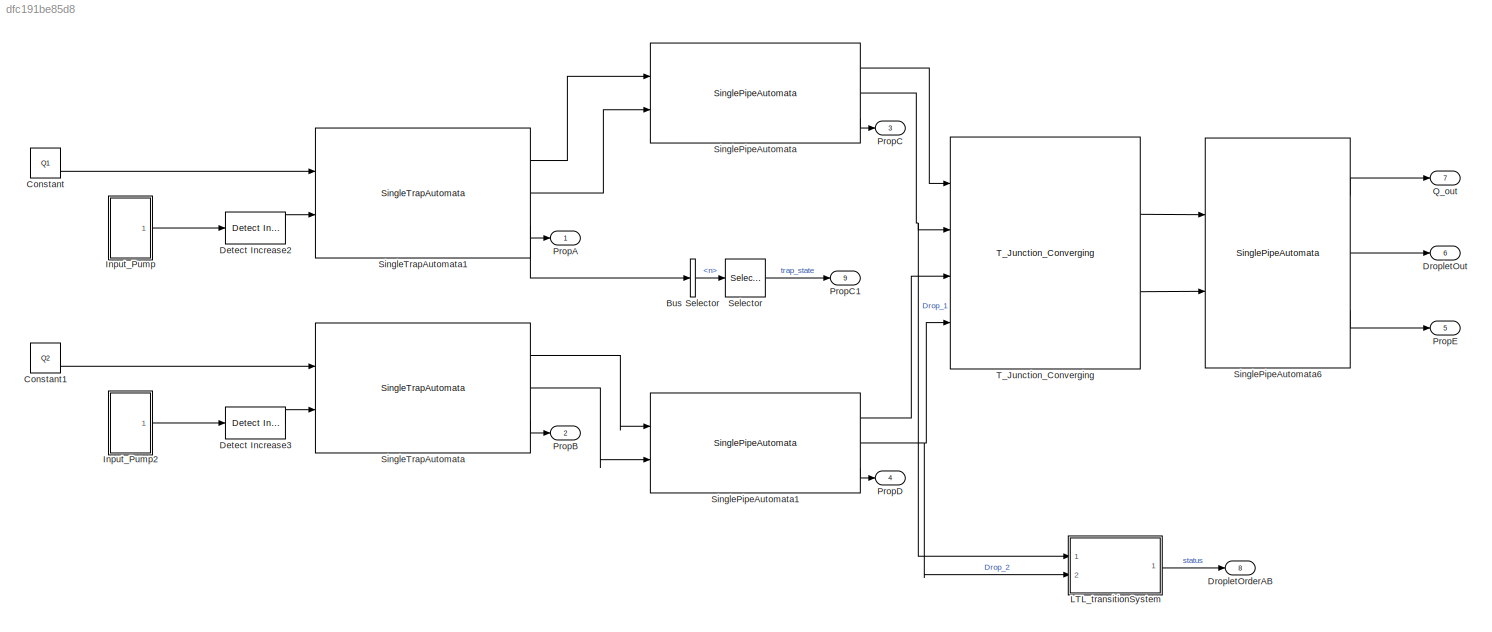
MODEL slx_dfc191be85d8
KIND model
CONFIG AbsTol = auto
CONFIG EnableMultiTasking = off
CONFIG FixedStep = dt
CONFIG MaxStep = auto
CONFIG MinStep = auto
CONFIG RelTol = 1e-3
CONFIG SampleTimeConstraint = Unconstrained
CONFIG Solver = FixedStepAuto
CONFIG SolverName = FixedStepAuto
CONFIG StartTime = 0.0
CONFIG StopTime = 3
BLOCK [BusSelector] Bus Selector
  OutputAsBus = off
  OutputSignals = n
  Ports = [1, 1]
BLOCK [Constant] Constant
  Value = Q1
BLOCK [Constant] Constant1
  Value = Q2
BLOCK [Reference] Detect Increase2  REF=simulink/Logic and Bit
Operations/Detect
Increase
  Ports = [1, 1]
  SourceBlock = simulink/Logic and Bit\nOperations/Detect\nIncrease
  SourceProductBaseCode = SL
  SourceType = Detect Increase
BLOCK [Reference] Detect Increase3  REF=simulink/Logic and Bit
Operations/Detect
Increase
  Ports = [1, 1]
  SourceBlock = simulink/Logic and Bit\nOperations/Detect\nIncrease
  SourceProductBaseCode = SL
  SourceType = Detect Increase
BLOCK [Outport] DropletOrderAB
  IconDisplay = Port number
  Port = 8
BLOCK [Outport] DropletOut
  IconDisplay = Port number
  Port = 6
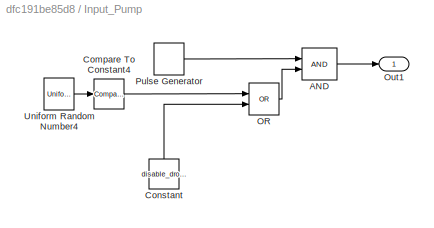
BLOCK [SubSystem] Input_Pump
  Ports = [0, 1]
  RequestExecContextInheritance = off
BLOCK [Logic] Input_Pump/AND
  AllPortsSameDT = off
  IconShape = distinctive
  OutDataTypeStr = boolean
  Ports = [2, 1]
BLOCK [Reference] Input_Pump/Compare To Constant4  REF=simulink/Logic and Bit
Operations/Compare
To Constant
  Ports = [1, 1]
  SourceBlock = simulink/Logic and Bit\nOperations/Compare\nTo Constant
  SourceProductBaseCode = SL
  SourceType = Compare To Constant
BLOCK [Constant] Input_Pump/Constant
  Value = disable_droplet_faults
BLOCK [Logic] Input_Pump/OR
  AllPortsSameDT = off
  IconShape = distinctive
  Operator = OR
  OutDataTypeStr = boolean
  Ports = [2, 1]
BLOCK [Outport] Input_Pump/Out1
  IconDisplay = Port number
BLOCK [DiscretePulseGenerator] Input_Pump/Pulse Generator
  Period = Period
  PhaseDelay = PhaseDelay
  Ports = [0, 1]
  PulseType = Time based
  PulseWidth = 50
BLOCK [UniformRandomNumber] Input_Pump/Uniform Random Number4
  SampleTime = 0.001
  Seed = Seed
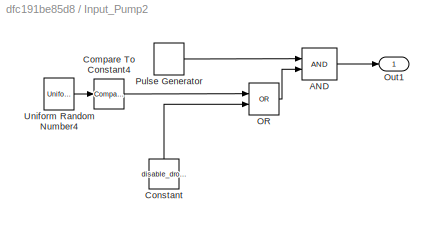
BLOCK [SubSystem] Input_Pump2
  Ports = [0, 1]
  RequestExecContextInheritance = off
BLOCK [Logic] Input_Pump2/AND
  AllPortsSameDT = off
  IconShape = distinctive
  OutDataTypeStr = boolean
  Ports = [2, 1]
BLOCK [Reference] Input_Pump2/Compare To Constant4  REF=simulink/Logic and Bit
Operations/Compare
To Constant
  Ports = [1, 1]
  SourceBlock = simulink/Logic and Bit\nOperations/Compare\nTo Constant
  SourceProductBaseCode = SL
  SourceType = Compare To Constant
BLOCK [Constant] Input_Pump2/Constant
  Value = disable_droplet_faults
BLOCK [Logic] Input_Pump2/OR
  AllPortsSameDT = off
  IconShape = distinctive
  Operator = OR
  OutDataTypeStr = boolean
  Ports = [2, 1]
BLOCK [Outport] Input_Pump2/Out1
  IconDisplay = Port number
BLOCK [DiscretePulseGenerator] Input_Pump2/Pulse Generator
  Period = Period
  PhaseDelay = PhaseDelay
  Ports = [0, 1]
  PulseType = Time based
  PulseWidth = 50
BLOCK [UniformRandomNumber] Input_Pump2/Uniform Random Number4
  SampleTime = 0.001
  Seed = Seed
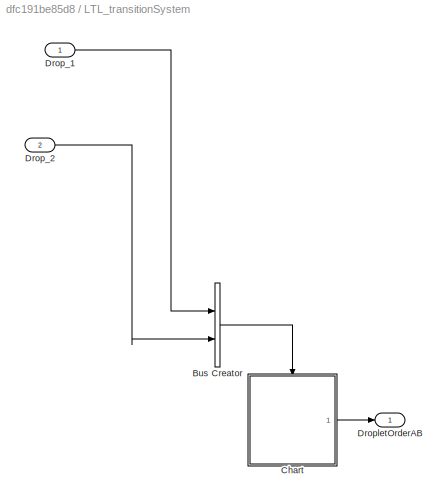
BLOCK [SubSystem] LTL_transitionSystem
  Ports = [2, 1]
  RequestExecContextInheritance = off
BLOCK [BusCreator] LTL_transitionSystem/Bus Creator
  DisplayOption = bar
  InheritFromInputs = on
  Inputs = 2
  Ports = [2, 1]
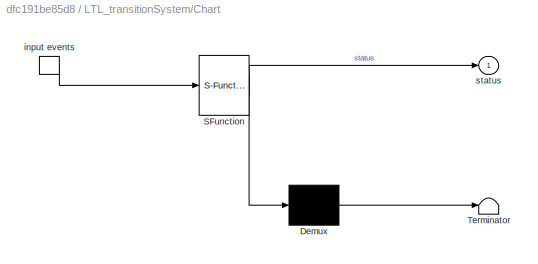
BLOCK [SubSystem] LTL_transitionSystem/Chart
  BlockKeywords = __PRM__SERIALIZED__DATA__:Stateflow Chart,Stateflow Diagram
  ErrorFcn = Stateflow.Translate.translate
  PermitHierarchicalResolution = ExplicitOnly
  Ports = [0, 1, 0, 1]
  RequestExecContextInheritance = off
  SFBlockType = Chart
  TreatAsAtomicUnit = on
BLOCK [Demux] LTL_transitionSystem/Chart/ Demux 
  Outputs = 1
  Ports = [1, 1]
BLOCK [S-Function] LTL_transitionSystem/Chart/ SFunction 
  EnableBusSupport = on
  FunctionName = sf_sfun
  PortCounts = [1 2]
  Ports = [1, 2]
  SFcnIsStateOwnerBlock = off
  SFunctionDeploymentMode = off
  Tag = Stateflow S-Function Trap_Model 3
BLOCK [Terminator] LTL_transitionSystem/Chart/ Terminator 
BLOCK [TriggerPort] LTL_transitionSystem/Chart/input events
  Ports = [0, 1]
  ShowOutputPort = on
  StatesWhenEnabling = held
  VariantControl = (inherit)
BLOCK [Outport] LTL_transitionSystem/Chart/status
  IconDisplay = Port number
BLOCK [Inport] LTL_transitionSystem/Drop_1
  IconDisplay = Port number
BLOCK [Inport] LTL_transitionSystem/Drop_2
  IconDisplay = Port number
  Port = 2
BLOCK [Outport] LTL_transitionSystem/DropletOrderAB
  IconDisplay = Port number
BLOCK [Outport] PropA
  IconDisplay = Port number
BLOCK [Outport] PropB
  IconDisplay = Port number
  Port = 2
BLOCK [Outport] PropC
  IconDisplay = Port number
  Port = 3
BLOCK [Outport] PropC1
  IconDisplay = Port number
  Port = 9
BLOCK [Outport] PropD
  IconDisplay = Port number
  Port = 4
BLOCK [Outport] PropE
  IconDisplay = Port number
  Port = 5
BLOCK [Outport] Q_out
  IconDisplay = Port number
  Port = 7
BLOCK [Selector] Selector
  IndexOptions = Index vector (dialog)
  Indices = [1]
  InputPortWidth = 2
  OutputSizes = 1
  Ports = [1, 1]
BLOCK [Reference] SinglePipeAutomata  REF=SinglePipe_lib/SinglePipeAutomata
  Ports = [2, 3]
  SourceBlock = SinglePipe_lib/SinglePipeAutomata
BLOCK [Reference] SinglePipeAutomata1  REF=SinglePipe_lib/SinglePipeAutomata
  Ports = [2, 3]
  SourceBlock = SinglePipe_lib/SinglePipeAutomata
BLOCK [Reference] SinglePipeAutomata6  REF=SinglePipe_lib/SinglePipeAutomata
  Ports = [2, 3]
  SourceBlock = SinglePipe_lib/SinglePipeAutomata
BLOCK [Reference] SingleTrapAutomata  REF=Trap_lib/SingleTrapAutomata
  Ports = [2, 3]
  SourceBlock = Trap_lib/SingleTrapAutomata
BLOCK [Reference] SingleTrapAutomata1  REF=Trap_lib/SingleTrapAutomata
  Ports = [2, 3]
  SourceBlock = Trap_lib/SingleTrapAutomata
BLOCK [Reference] T_Junction_Converging  REF=Junction_Lib/T_Junction_Converging
  Ports = [4, 2]
  SourceBlock = Junction_Lib/T_Junction_Converging
  SourceType = SubSystem
LINE Bus Selector:1 -> Selector:1
LINE Constant1:1 -> SingleTrapAutomata:1
LINE Constant:1 -> SingleTrapAutomata1:1
LINE Detect Increase2:1 -> SingleTrapAutomata1:2
LINE Detect Increase3:1 -> SingleTrapAutomata:2
LINE Input_Pump/AND:1 -> Input_Pump/Out1:1
LINE Input_Pump/Compare To Constant4:1 -> Input_Pump/OR:1
LINE Input_Pump/Constant:1 -> Input_Pump/OR:2
LINE Input_Pump/OR:1 -> Input_Pump/AND:2
LINE Input_Pump/Pulse Generator:1 -> Input_Pump/AND:1
LINE Input_Pump/Uniform Random Number4:1 -> Input_Pump/Compare To Constant4:1
LINE Input_Pump2/AND:1 -> Input_Pump2/Out1:1
LINE Input_Pump2/Compare To Constant4:1 -> Input_Pump2/OR:1
LINE Input_Pump2/Constant:1 -> Input_Pump2/OR:2
LINE Input_Pump2/OR:1 -> Input_Pump2/AND:2
LINE Input_Pump2/Pulse Generator:1 -> Input_Pump2/AND:1
LINE Input_Pump2/Uniform Random Number4:1 -> Input_Pump2/Compare To Constant4:1
LINE Input_Pump2:1 -> Detect Increase3:1
LINE Input_Pump:1 -> Detect Increase2:1
LINE LTL_transitionSystem/Bus Creator:1 -> LTL_transitionSystem/Chart:trigger
LINE LTL_transitionSystem/Chart:1 -> LTL_transitionSystem/DropletOrderAB:1
LINE LTL_transitionSystem/Drop_1:1 -> LTL_transitionSystem/Bus Creator:1
LINE LTL_transitionSystem/Drop_2:1 -> LTL_transitionSystem/Bus Creator:2
LINE LTL_transitionSystem:1 -> DropletOrderAB:1
LINE Selector:1 -> PropC1:1
LINE SinglePipeAutomata1:1 -> T_Junction_Converging:3
NET SinglePipeAutomata1:2 -> LTL_transitionSystem:2, T_Junction_Converging:4
LINE SinglePipeAutomata1:3 -> PropD:1
LINE SinglePipeAutomata6:1 -> Q_out:1
LINE SinglePipeAutomata6:2 -> DropletOut:1
LINE SinglePipeAutomata6:3 -> PropE:1
LINE SinglePipeAutomata:1 -> T_Junction_Converging:1
NET SinglePipeAutomata:2 -> LTL_transitionSystem:1, T_Junction_Converging:2
LINE SinglePipeAutomata:3 -> PropC:1
LINE SingleTrapAutomata1:1 -> SinglePipeAutomata:1
LINE SingleTrapAutomata1:2 -> SinglePipeAutomata:2
NET SingleTrapAutomata1:3 -> Bus Selector:1, PropA:1
LINE SingleTrapAutomata:1 -> SinglePipeAutomata1:1
LINE SingleTrapAutomata:2 -> SinglePipeAutomata1:2
LINE SingleTrapAutomata:3 -> PropB:1
LINE T_Junction_Converging:1 -> SinglePipeAutomata6:1
LINE T_Junction_Converging:2 -> SinglePipeAutomata6:2
note: NET lines group one-source signal fan-out (src -> all destinations, sorted); 1:1 wires keep LINE
CHART LTL_transitionSystem/Chart states=4 transitions=11
  STATE_LABEL 'null\nen:status=0;'
  STATE_LABEL 'State_A\nen:status=1;'
  STATE_LABEL 'Error\nen:status=2;'
  STATE_LABEL 'State_B\nen:status=1;'
